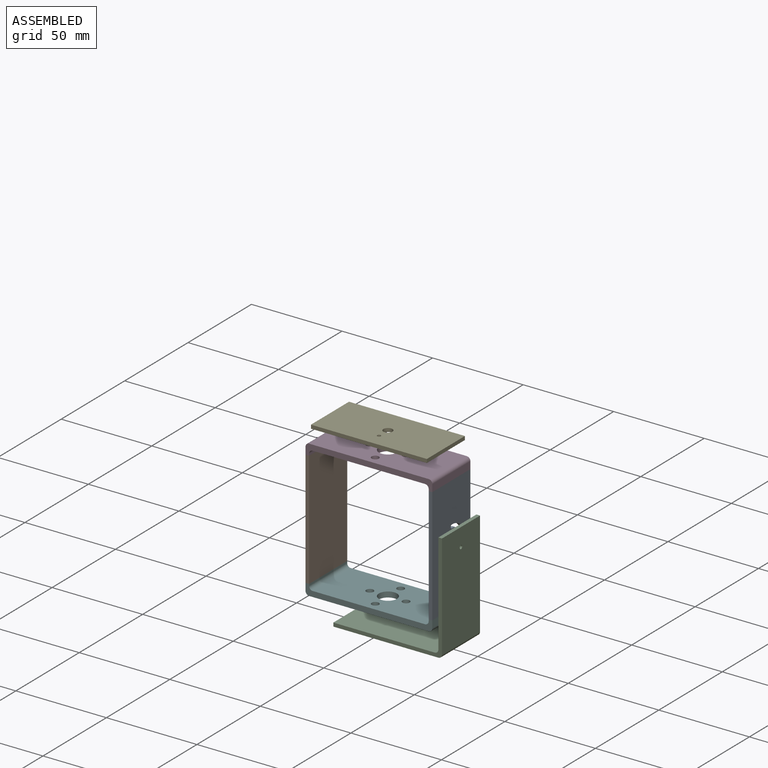
[diagram: assembled view]
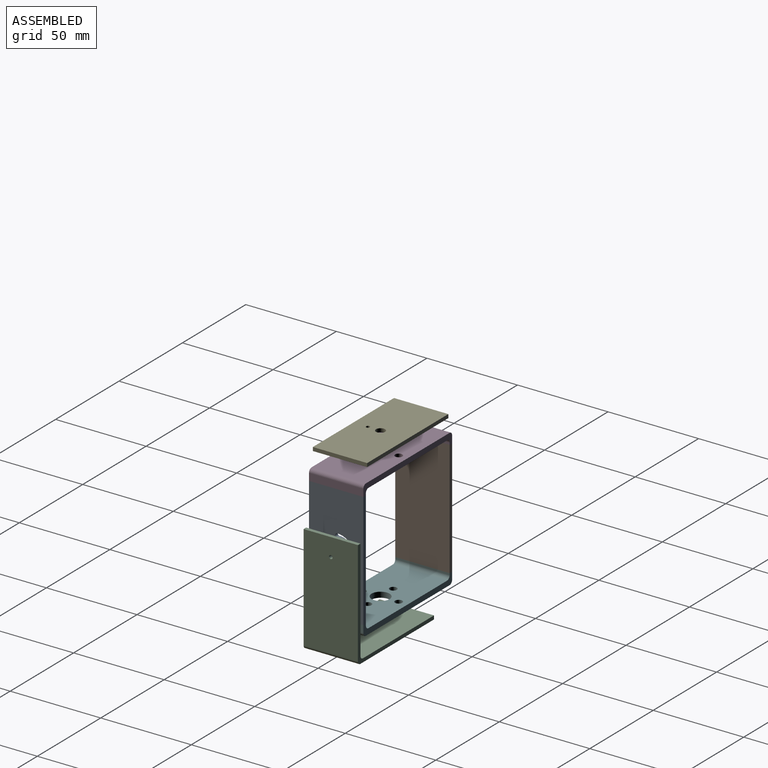
[diagram: assembled view, second angle]
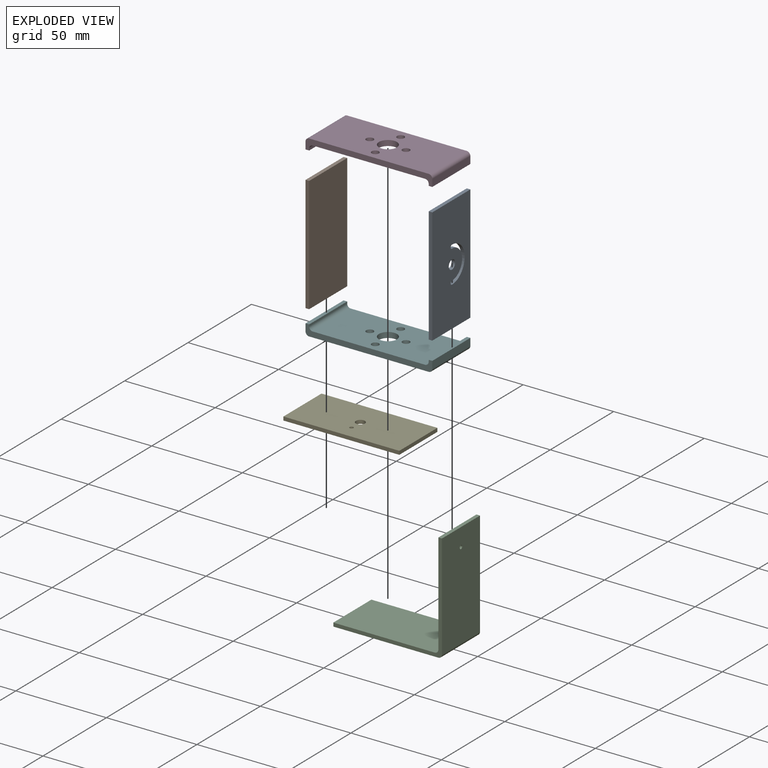
[diagram: exploded view]
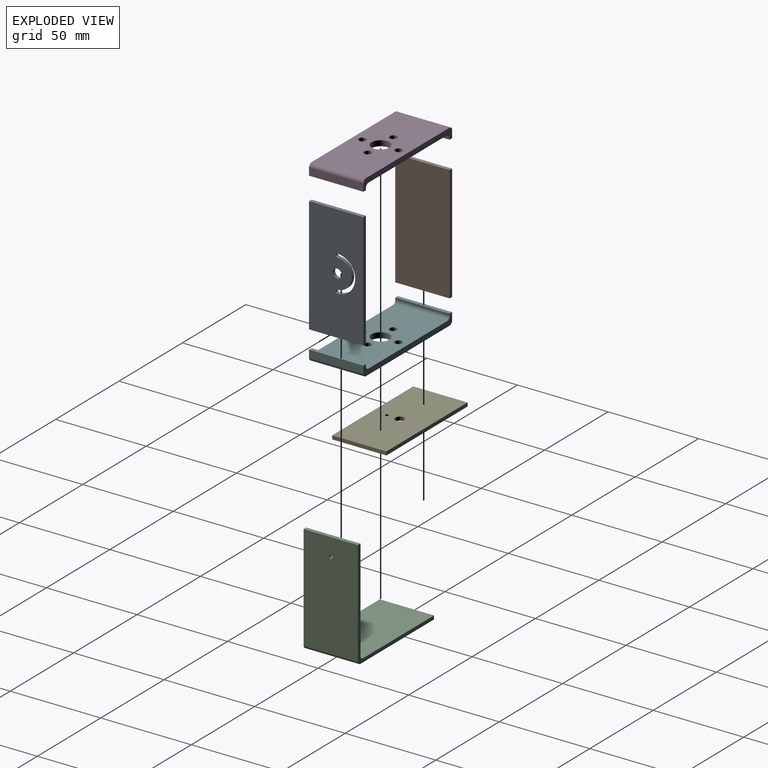
[diagram: exploded view, second angle]
ASSEMBLY  parts=6 mates=3
PART A: 11 faces, bbox 30x2x64 mm
  f0: plane 30x2mm, normal (0,0,1), area 60mm2, adj f1,f8,f9,f10
  f1: plane 64x2mm, normal (-1,0,0), area 128mm2, adj f0,f2,f9,f10
  f2: plane 30x2mm, normal (0,0,-1), area 60mm2, adj f1,f8,f9,f10
  f3: cylinder r=1mm len=2mm, axis (0,1,0), area 6.3mm2, adj f4,f6,f9,f10
  f4: cylinder r=10mm len=20mm, axis (0,1,0), area 62.8mm2, adj f3,f5,f9,f10
  f5: cylinder r=1mm len=2mm, axis (0,1,0), area 6.3mm2, adj f4,f6,f9,f10
  f6: cylinder r=8mm len=16mm, axis (0,1,0), area 50.3mm2, adj f3,f5,f9,f10
  f7: cylinder r=2.5mm len=5mm, axis (0,1,0), area 31.4mm2, adj f9,f10
  f8: plane 64x2mm, normal (1,0,0), area 128mm2, adj f0,f2,f9,f10
  f9: plane 64x30mm, normal (0,-1,0), area 1840.7mm2, adj f0,f1,f2,f3,f4,f5,f6,f7
  f10: plane 64x30mm, normal (0,1,0), area 1840.7mm2, adj f0,f1,f2,f3,f4,f5,f6,f7
PART B: 6 faces, bbox 30x2x64 mm
  f0: plane 30x2mm, normal (0,0,1), area 60mm2, adj f1,f3,f4,f5
  f1: plane 64x2mm, normal (-1,0,0), area 128mm2, adj f0,f2,f4,f5
  f2: plane 30x2mm, normal (0,0,-1), area 60mm2, adj f1,f3,f4,f5
  f3: plane 64x2mm, normal (1,0,0), area 128mm2, adj f0,f2,f4,f5
  f4: plane 64x30mm, normal (0,-1,0), area 1920mm2, adj f0,f1,f2,f3
  f5: plane 64x30mm, normal (0,1,0), area 1920mm2, adj f0,f1,f2,f3
PART C: 13 faces, bbox 60x30x60 mm
  f0: plane 30x2mm, normal (0,0,1), area 60mm2, adj f1,f2,f3,f4
  f1: plane 60x60mm, normal (0,-1,0), area 236mm2, adj f0,f3,f4,f5,f6,f7,f8,f9
  f2: plane 60x60mm, normal (0,1,0), area 236mm2, adj f0,f3,f4,f5,f6,f7,f8,f9
  f3: plane 56x30mm, normal (1,0,0), area 1673.7mm2, adj f0,f1,f2,f9,f10,f11
  f4: plane 58x30mm, normal (-1,0,0), area 1736.9mm2, adj f0,f1,f2,f8,f10
  f5: plane 56x30mm, normal (0,0,1), area 1680mm2, adj f1,f2,f7,f9
  f6: plane 58x30mm, normal (0,0,-1), area 1740mm2, adj f1,f2,f7,f8
  f7: plane 30x2mm, normal (1,0,0), area 60mm2, adj f1,f2,f5,f6
  f8: cylinder r=2mm len=30mm, axis (0,1,0), area 94.2mm2, adj f1,f2,f4,f6
  f9: cylinder r=2mm len=30mm, axis (0,-1,0), area 94.2mm2, adj f1,f2,f3,f5
  f10: cylinder r=1mm len=2mm, axis (-1,0,0), area 12.6mm2, adj f3,f4
  f11: cylinder r=1mm len=6mm, axis (-1,0,0), area 37.7mm2, adj f3,f12
  f12: plane 2x2mm, normal (1,0,0), area 3.1mm2, adj f11
PART D: 19 faces, bbox 70x30x6 mm
  f0: plane 70x6mm, normal (0,1,0), area 222mm2, adj f2,f3,f4,f5,f6,f7,f8,f9
  f1: plane 70x6mm, normal (0,-1,0), area 222mm2, adj f2,f3,f4,f5,f6,f7,f8,f9
  f2: plane 62x30mm, normal (0,0,1), area 1731.2mm2, adj f0,f1,f10,f11,f12,f13,f14,f17
  f3: plane 66x30mm, normal (0,0,-1), area 1851.2mm2, adj f0,f1,f10,f11,f12,f13,f14,f15
  f4: plane 30x1mm, normal (-1,0,0), area 30mm2, adj f0,f1,f6,f18
  f5: plane 30x4mm, normal (1,0,0), area 120mm2, adj f0,f1,f6,f15
  f6: plane 30x2mm, normal (0,0,1), area 60mm2, adj f0,f1,f4,f5
  f7: plane 30x1mm, normal (1,0,0), area 30mm2, adj f0,f1,f9,f17
  f8: plane 30x4mm, normal (-1,0,0), area 120mm2, adj f0,f1,f9,f16
  f9: plane 30x2mm, normal (0,0,1), area 60mm2, adj f0,f1,f7,f8
  f10: cylinder r=2mm len=4mm, axis (0,0,-1), area 37.7mm2, adj f2,f3
  f11: cylinder r=2mm len=4mm, axis (0,0,-1), area 37.7mm2, adj f2,f3
  f12: cylinder r=2mm len=4mm, axis (0,0,-1), area 37.7mm2, adj f2,f3
  f13: cylinder r=2mm len=4mm, axis (0,0,-1), area 37.7mm2, adj f2,f3
  f14: cylinder r=5mm len=10mm, axis (0,0,-1), area 94.2mm2, adj f2,f3
  f15: cylinder r=2mm len=30mm, axis (0,1,0), area 94.2mm2, adj f0,f1,f3,f5
  f16: cylinder r=2mm len=30mm, axis (0,-1,0), area 94.2mm2, adj f0,f1,f3,f8
  f17: cylinder r=2mm len=30mm, axis (0,1,0), area 94.2mm2, adj f0,f1,f2,f7
  f18: cylinder r=2mm len=30mm, axis (0,-1,0), area 94.2mm2, adj f0,f1,f2,f4
PART E: 8 faces, bbox 30x2x64 mm
  f0: plane 30x2mm, normal (0,0,1), area 60mm2, adj f1,f5,f6,f7
  f1: plane 64x2mm, normal (-1,0,0), area 128mm2, adj f0,f2,f6,f7
  f2: plane 30x2mm, normal (0,0,-1), area 60mm2, adj f1,f5,f6,f7
  f3: cylinder r=2.5mm len=5mm, axis (0,1,0), area 31.4mm2, adj f6,f7
  f4: cylinder r=1mm len=2mm, axis (0,1,0), area 12.6mm2, adj f6,f7
  f5: plane 64x2mm, normal (1,0,0), area 128mm2, adj f0,f2,f6,f7
  f6: plane 64x30mm, normal (0,-1,0), area 1897.2mm2, adj f0,f1,f2,f3,f4,f5
  f7: plane 64x30mm, normal (0,1,0), area 1897.2mm2, adj f0,f1,f2,f3,f4,f5
PART F: same geometry as D
PLACE A rot(axis=(0,0,1),90deg) t=(33.53,29.9,40.11)mm
PLACE B rot(axis=(0,0,-1),90deg) t=(-32.47,-35.63,57.71)mm
PLACE C rot(axis=(0,0,1),180deg) t=(40.53,-33.73,20.94)mm
PLACE D rot(axis=(1,0,0),180deg) t=(-14.41,-19.99,72.36)mm
PLACE E rot(axis=(-0.58,0.58,-0.58),120deg) t=(6.28,-30.15,80.11)mm
PLACE F t=(-14.41,19.75,-3.64)mm
MATE planar D.f6 <-> A.f0  axis (0,0,-1) through (34.53,-0.12,66.36)mm
MATE planar A.f2 <-> F.f6  axis (0,0,-1) through (34.53,-0.12,2.36)mm
MATE planar B.f0 <-> D.f9  axis (0,0,1) through (-33.47,-0.12,66.36)mm
